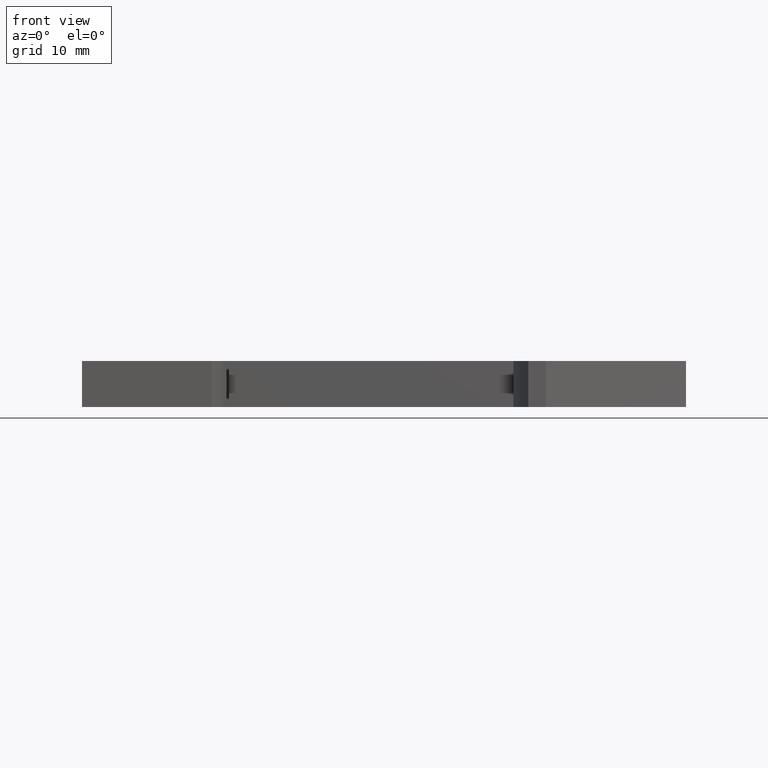
[diagram: clean part render]
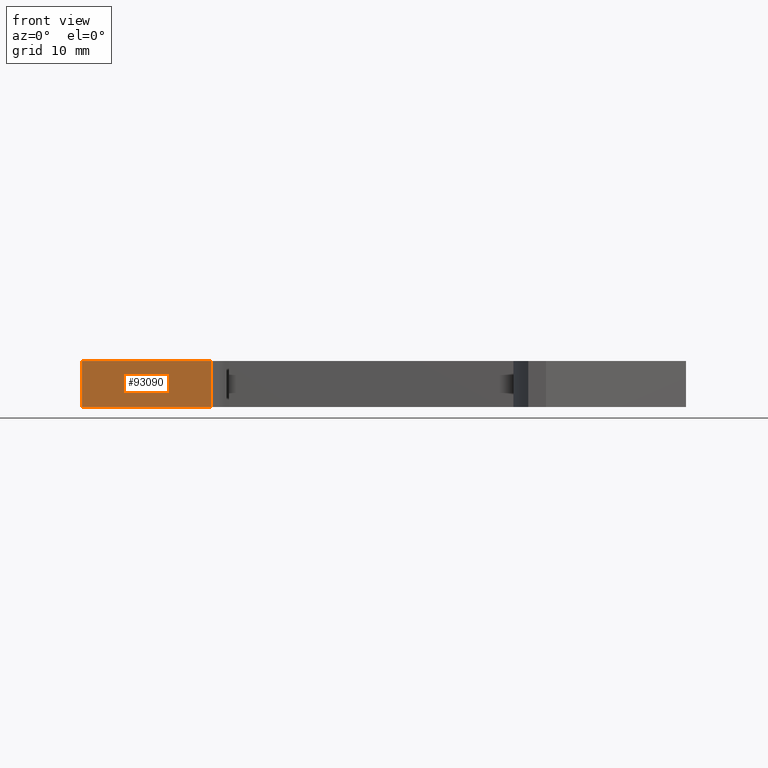
[diagram: same view with one face highlighted and labeled with its STEP entity id]
A machine part, front view. The second image highlights one B-rep face of the part: STEP entity #93090.
In plain terms, the highlighted planar face has unit normal (-0, 1, 0).
Its self-contained STEP definition (entity closure, byte-faithful):
#5440=CARTESIAN_POINT('',(135.318635451691,-3.50328617783001,48.52));
#5450=VERTEX_POINT('',#5440);
#5480=CARTESIAN_POINT('',(14.196323,-3.50328617783188,48.52));
#5490=DIRECTION('',(-1.,-1.54289738893123E-14,0.));
#5500=VECTOR('',#5490,1.);
#5510=LINE('',#5480,#5500);
#5520=CARTESIAN_POINT('',(149.809692107295,-3.50328617782979,48.52));
#5530=VERTEX_POINT('',#5520);
#5540=EDGE_CURVE('',#5530,#5450,#5510,.T.);
#90760=CARTESIAN_POINT('',(135.318635451691,-3.50328617783001,53.67));
#90770=VERTEX_POINT('',#90760);
#90800=CARTESIAN_POINT('',(135.318635451691,-3.50328617783001,53.67));
#90810=DIRECTION('',(0.,0.,1.));
#90820=VECTOR('',#90810,1.);
#90830=LINE('',#90800,#90820);
#90840=EDGE_CURVE('',#5450,#90770,#90830,.T.);
#91080=CARTESIAN_POINT('',(149.809692107295,-3.50328617782979,53.67));
#91090=VERTEX_POINT('',#91080);
#91210=CARTESIAN_POINT('',(149.809692107295,-3.50328617782979,53.67));
#91220=DIRECTION('',(0.,0.,1.));
#91230=VECTOR('',#91220,1.);
#91240=LINE('',#91210,#91230);
#91250=EDGE_CURVE('',#5530,#91090,#91240,.T.);
#92930=CARTESIAN_POINT('',(148.699779018907,-3.50328617782981,53.67));
#92940=DIRECTION('',(-1.54289738893123E-14,1.,0.));
#92950=DIRECTION('',(1.,1.54289738893123E-14,0.));
#92960=AXIS2_PLACEMENT_3D('',#92930,#92940,#92950);
#92970=PLANE('',#92960);
#92980=CARTESIAN_POINT('',(14.196323,-3.50328617783188,53.67));
#92990=DIRECTION('',(-1.,-1.54289738893123E-14,0.));
#93000=VECTOR('',#92990,1.);
#93010=LINE('',#92980,#93000);
#93020=EDGE_CURVE('',#91090,#90770,#93010,.T.);
#93030=ORIENTED_EDGE('',*,*,#93020,.T.);
#93040=ORIENTED_EDGE('',*,*,#91250,.T.);
#93050=ORIENTED_EDGE('',*,*,#5540,.F.);
#93060=ORIENTED_EDGE('',*,*,#90840,.F.);
#93070=EDGE_LOOP('',(#93060,#93050,#93040,#93030));
#93080=FACE_OUTER_BOUND('',#93070,.T.);
#93090=ADVANCED_FACE('',(#93080),#92970,.F.);